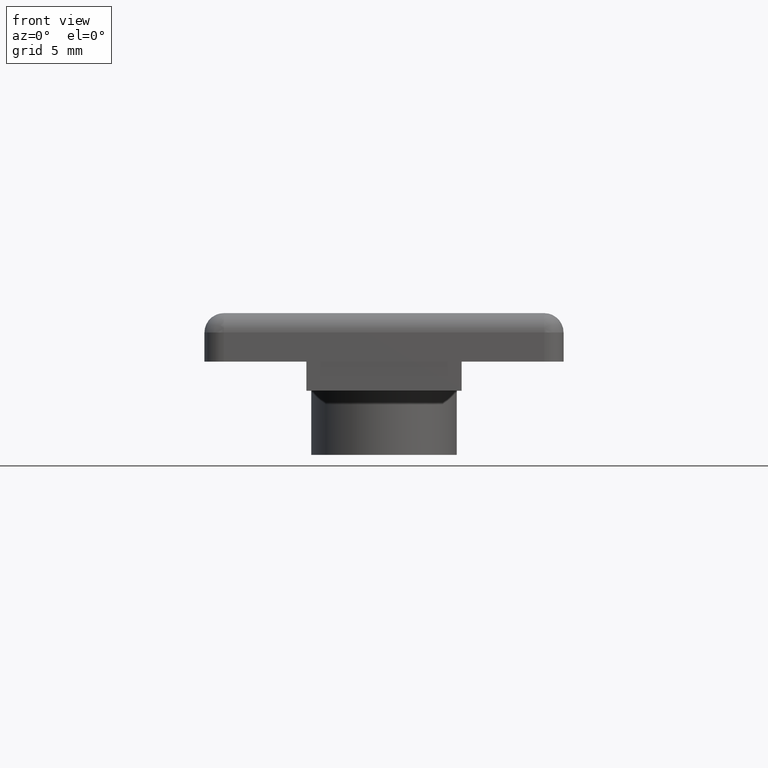
[diagram: clean part render]
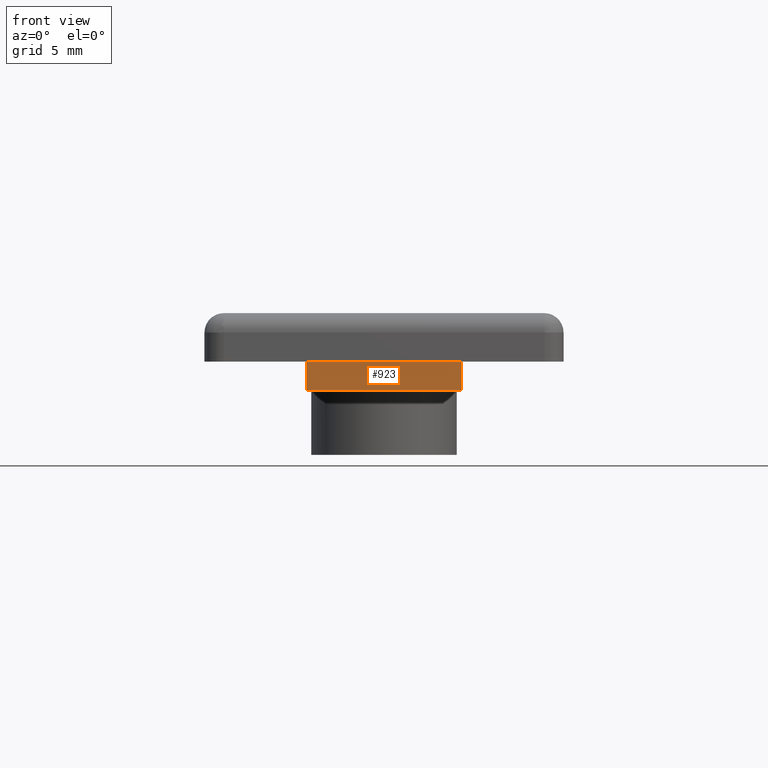
[diagram: same view with one face highlighted and labeled with its STEP entity id]
A machine part, front view. The second image highlights one B-rep face of the part: STEP entity #923.
In plain terms, the highlighted planar face has unit normal (0, -1, 0).
Its self-contained STEP definition (entity closure, byte-faithful):
#107=CARTESIAN_POINT('',(-3.999999999984084,-22.449999999910233,0.0));
#108=VERTEX_POINT('',#107);
#115=CARTESIAN_POINT('',(3.999999999984084,-22.449999999910233,0.0));
#116=VERTEX_POINT('',#115);
#117=CARTESIAN_POINT('',(3.999999999984084,-22.449999999910233,0.0));
#118=DIRECTION('',(-1.0,0.0,0.0));
#119=VECTOR('',#118,7.999999999968168);
#120=LINE('',#117,#119);
#121=EDGE_CURVE('',#116,#108,#120,.T.);
#883=CARTESIAN_POINT('',(3.999999999984084,-22.449999999910233,-1.499999999994088));
#884=VERTEX_POINT('',#883);
#885=CARTESIAN_POINT('',(3.999999999984084,-22.449999999910233,0.0));
#886=DIRECTION('',(0.0,0.0,-1.0));
#887=VECTOR('',#886,1.499999999994088);
#888=LINE('',#885,#887);
#889=EDGE_CURVE('',#116,#884,#888,.T.);
#900=CARTESIAN_POINT('',(3.999999999984084,-22.449999999910233,0.0));
#901=DIRECTION('',(0.0,-1.0,0.0));
#902=DIRECTION('',(-1.0,0.0,0.0));
#903=AXIS2_PLACEMENT_3D('',#900,#901,#902);
#904=PLANE('',#903);
#905=ORIENTED_EDGE('',*,*,#889,.F.);
#906=ORIENTED_EDGE('',*,*,#121,.T.);
#907=CARTESIAN_POINT('',(-3.999999999984084,-22.449999999910233,-1.499999999994088));
#908=VERTEX_POINT('',#907);
#909=CARTESIAN_POINT('',(-3.999999999984084,-22.449999999910233,0.0));
#910=DIRECTION('',(0.0,0.0,-1.0));
#911=VECTOR('',#910,1.499999999994088);
#912=LINE('',#909,#911);
#913=EDGE_CURVE('',#108,#908,#912,.T.);
#914=ORIENTED_EDGE('',*,*,#913,.T.);
#915=CARTESIAN_POINT('',(3.999999999984084,-22.449999999910233,-1.499999999994088));
#916=DIRECTION('',(-1.0,0.0,0.0));
#917=VECTOR('',#916,7.999999999968168);
#918=LINE('',#915,#917);
#919=EDGE_CURVE('',#884,#908,#918,.T.);
#920=ORIENTED_EDGE('',*,*,#919,.F.);
#921=EDGE_LOOP('',(#905,#906,#914,#920));
#922=FACE_OUTER_BOUND('',#921,.T.);
#923=ADVANCED_FACE('',(#922),#904,.T.);